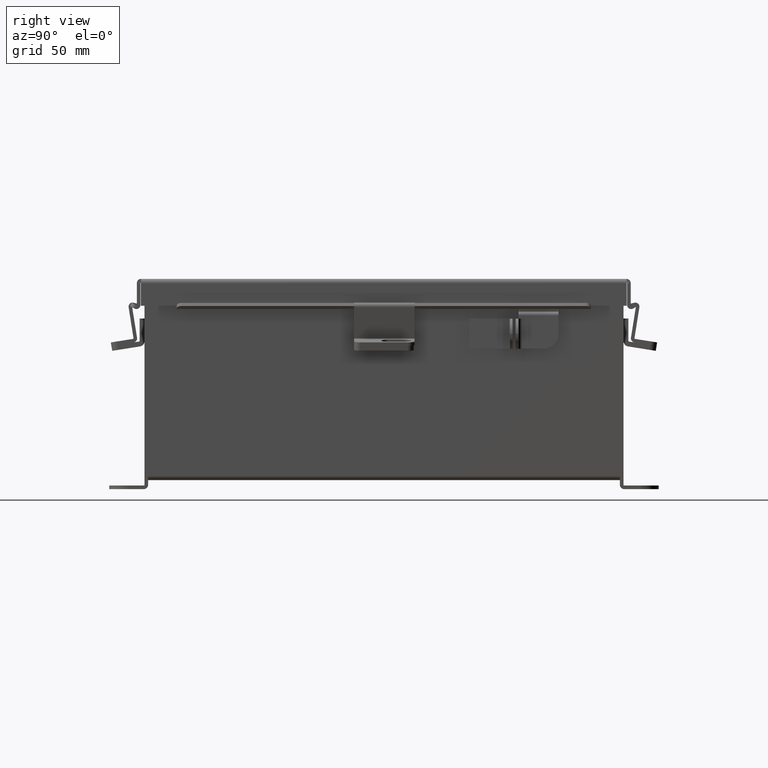
[diagram: clean part render]
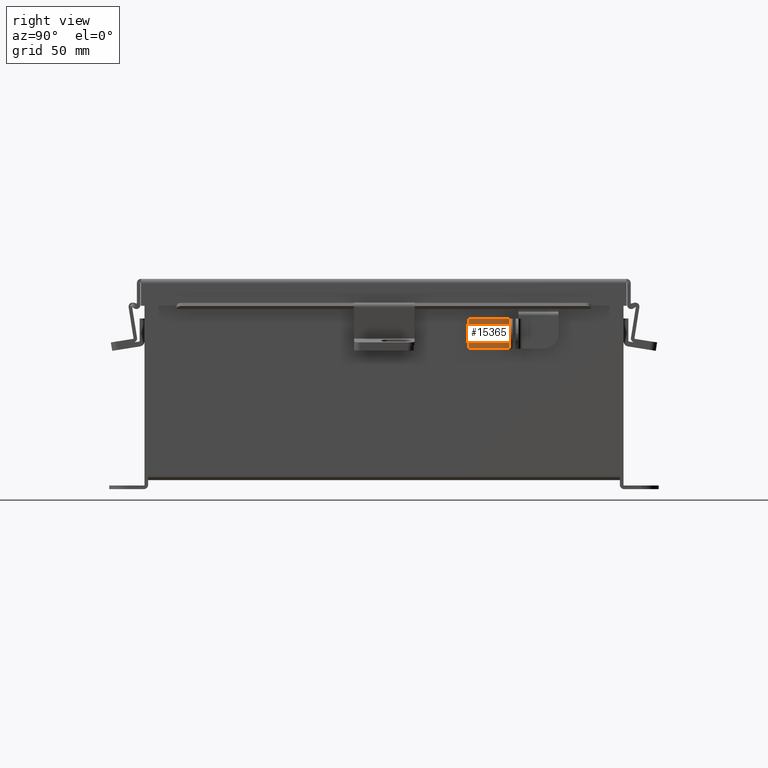
[diagram: same view with one face highlighted and labeled with its STEP entity id]
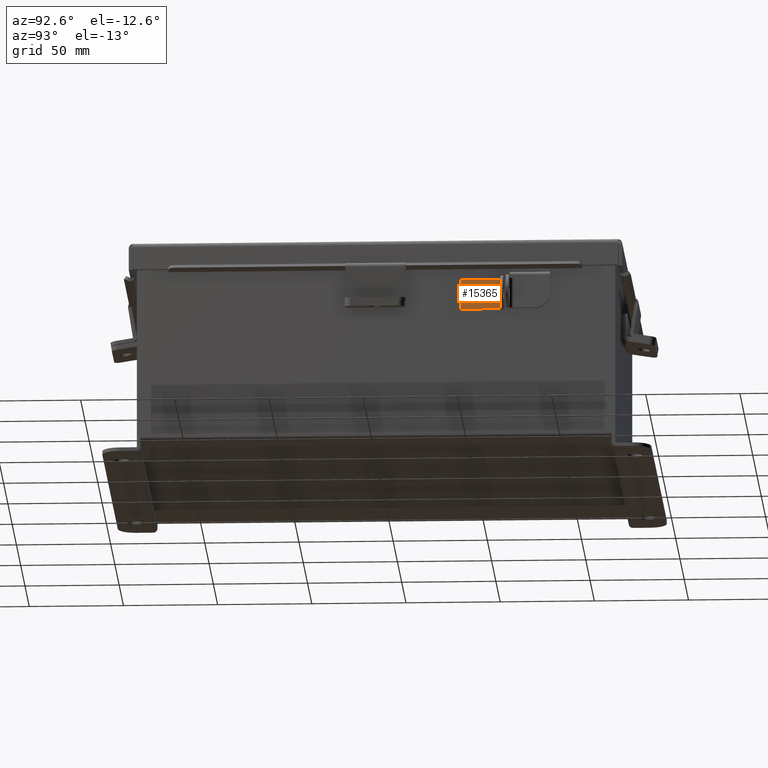
[diagram: same view with one face highlighted and labeled with its STEP entity id]
A machine part, right view. The second image highlights one B-rep face of the part: STEP entity #15365.
A second angle (auxiliary view) of the same face is appended — the face is thin or edge-on in the first view.
In plain terms, the highlighted planar face has unit normal (1, 0, -0).
Its self-contained STEP definition (entity closure, byte-faithful):
#474 = EDGE_CURVE ( 'NONE', #6934, #7365, #1730, .T. ) ;
#1717 = VECTOR ( 'NONE', #11137, 39.37007874015748100 ) ;
#1730 = LINE ( 'NONE', #14736, #5229 ) ;
#2215 = EDGE_CURVE ( 'NONE', #7365, #13005, #11220, .T. ) ;
#4445 = VECTOR ( 'NONE', #15221, 39.37007874015748100 ) ;
#4866 = EDGE_CURVE ( 'NONE', #15525, #13005, #14872, .T. ) ;
#5032 = DIRECTION ( 'NONE',  ( 0.0000000000000000000, -0.0000000000000000000, 1.000000000000000000 ) ) ;
#5229 = VECTOR ( 'NONE', #14688, 39.37007874015748100 ) ;
#5771 = CARTESIAN_POINT ( 'NONE',  ( 0.6250000000000000000, 0.0000000000000000000, -0.01300000000000000100 ) ) ;
#5931 = EDGE_LOOP ( 'NONE', ( #13427, #14033, #15540, #16318 ) ) ;
#6224 = LINE ( 'NONE', #6448, #9614 ) ;
#6233 = CARTESIAN_POINT ( 'NONE',  ( 0.6250000000000000000, 0.0000000000000000000, 0.0000000000000000000 ) ) ;
#6278 = PLANE ( 'NONE',  #9640 ) ;
#6448 = CARTESIAN_POINT ( 'NONE',  ( 0.6250000000000000000, 0.0000000000000000000, 0.0000000000000000000 ) ) ;
#6934 = VERTEX_POINT ( 'NONE', #5771 ) ;
#7365 = VERTEX_POINT ( 'NONE', #8992 ) ;
#7963 = EDGE_CURVE ( 'NONE', #6934, #15525, #6224, .T. ) ;
#8992 = CARTESIAN_POINT ( 'NONE',  ( 0.0000000000000000000, 0.0000000000000000000, -0.01300000000000000100 ) ) ;
#9614 = VECTOR ( 'NONE', #15214, 39.37007874015748100 ) ;
#9640 = AXIS2_PLACEMENT_3D ( 'NONE', #6233, #12615, #5032 ) ;
#11137 = DIRECTION ( 'NONE',  ( -1.000000000000000000, -0.0000000000000000000, -0.0000000000000000000 ) ) ;
#11220 = LINE ( 'NONE', #15115, #4445 ) ;
#12084 = CARTESIAN_POINT ( 'NONE',  ( 0.6250000000000000000, 0.0000000000000000000, -0.8500000000000000900 ) ) ;
#12615 = DIRECTION ( 'NONE',  ( -0.0000000000000000000, 1.000000000000000000, 0.0000000000000000000 ) ) ;
#13005 = VERTEX_POINT ( 'NONE', #15470 ) ;
#13284 = FACE_OUTER_BOUND ( 'NONE', #5931, .T. ) ;
#13427 = ORIENTED_EDGE ( 'NONE', *, *, #2215, .F. ) ;
#14033 = ORIENTED_EDGE ( 'NONE', *, *, #474, .F. ) ;
#14688 = DIRECTION ( 'NONE',  ( -1.000000000000000000, -0.0000000000000000000, -0.0000000000000000000 ) ) ;
#14736 = CARTESIAN_POINT ( 'NONE',  ( 0.6250000000000000000, 0.0000000000000000000, -0.01300000000000000100 ) ) ;
#14872 = LINE ( 'NONE', #12084, #1717 ) ;
#15115 = CARTESIAN_POINT ( 'NONE',  ( 0.0000000000000000000, 0.0000000000000000000, 0.0000000000000000000 ) ) ;
#15214 = DIRECTION ( 'NONE',  ( 0.0000000000000000000, 0.0000000000000000000, -1.000000000000000000 ) ) ;
#15221 = DIRECTION ( 'NONE',  ( 0.0000000000000000000, 0.0000000000000000000, -1.000000000000000000 ) ) ;
#15365 = ADVANCED_FACE ( 'NONE', ( #13284 ), #6278, .T. ) ;
#15470 = CARTESIAN_POINT ( 'NONE',  ( 0.0000000000000000000, 0.0000000000000000000, -0.8500000000000000900 ) ) ;
#15525 = VERTEX_POINT ( 'NONE', #15698 ) ;
#15540 = ORIENTED_EDGE ( 'NONE', *, *, #7963, .T. ) ;
#15698 = CARTESIAN_POINT ( 'NONE',  ( 0.6250000000000000000, 0.0000000000000000000, -0.8500000000000000900 ) ) ;
#16318 = ORIENTED_EDGE ( 'NONE', *, *, #4866, .T. ) ;